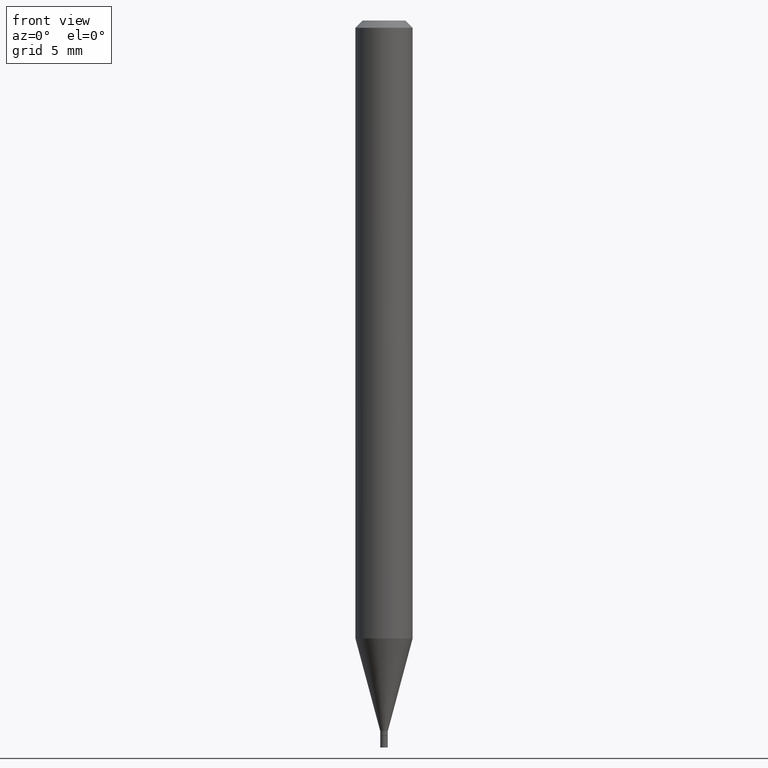
[diagram: clean part render]
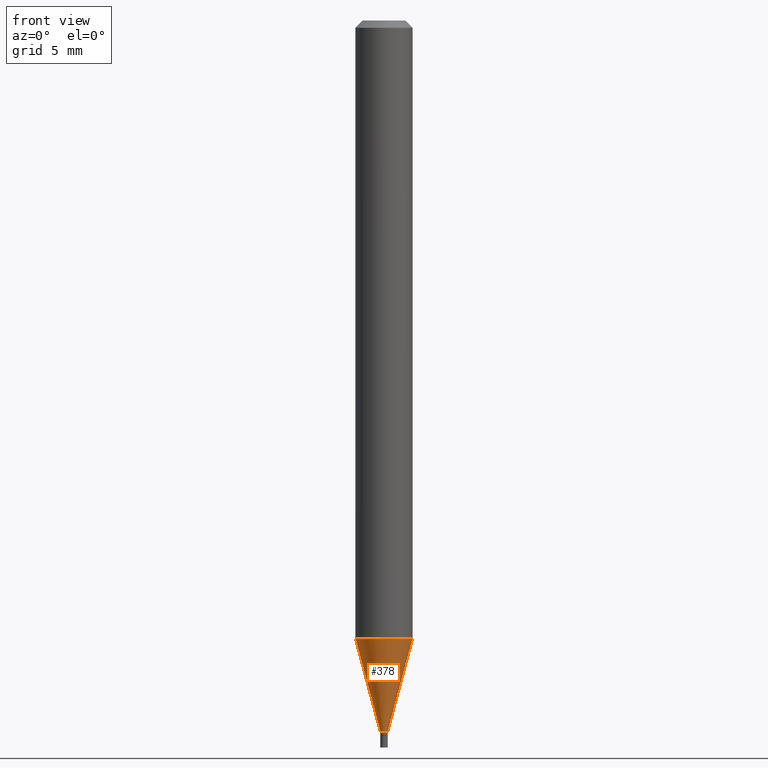
[diagram: same view with one face highlighted and labeled with its STEP entity id]
A machine part, front view. The second image highlights one B-rep face of the part: STEP entity #378.
In plain terms, the highlighted conical surface has half-angle 15 deg.
Its self-contained STEP definition (entity closure, byte-faithful):
#5 = DIRECTION ( 'NONE',  ( -2.445468806185136597E-29, 3.491481338843145583E-15, 1.000000000000000000 ) ) ;
#10 = CARTESIAN_POINT ( 'NONE',  ( 0.007849999999999919542, -5.173327899763888780E-15, -1.466000000000000192 ) ) ;
#39 = CARTESIAN_POINT ( 'NONE',  ( -0.007849999999999919542, -5.062734037986884746E-15, -1.466000000000000192 ) ) ;
#53 = DIRECTION ( 'NONE',  ( -0.2588190451025214611, 5.211531920934551042E-15, 0.9659258262890682012 ) ) ;
#78 = ORIENTED_EDGE ( 'NONE', *, *, #420, .F. ) ;
#92 = CARTESIAN_POINT ( 'NONE',  ( 0.05904999999999998445, -4.863699838449076344E-15, -1.274918998652473823 ) ) ;
#108 = VECTOR ( 'NONE', #53, 39.37007874015747433 ) ;
#117 = CARTESIAN_POINT ( 'NONE',  ( 0.007849999999999919542, -5.173327899763888780E-15, -1.466000000000000192 ) ) ;
#149 = AXIS2_PLACEMENT_3D ( 'NONE', #224, #407, #301 ) ;
#166 = DIRECTION ( 'NONE',  ( 1.000000000000000000, -6.982962677686274599E-15, 0.000000000000000000 ) ) ;
#179 = EDGE_CURVE ( 'NONE', #192, #308, #345, .T. ) ;
#183 = EDGE_CURVE ( 'NONE', #308, #390, #399, .T. ) ;
#192 = VERTEX_POINT ( 'NONE', #335 ) ;
#219 = FACE_OUTER_BOUND ( 'NONE', #238, .T. ) ;
#224 = CARTESIAN_POINT ( 'NONE',  ( 3.585057269867410650E-29, -5.118511642744051990E-15, -1.466000000000000192 ) ) ;
#238 = EDGE_LOOP ( 'NONE', ( #78, #435, #333, #306 ) ) ;
#255 = DIRECTION ( 'NONE',  ( -2.445468806185136597E-29, 3.491481338843145583E-15, 1.000000000000000000 ) ) ;
#273 = CONICAL_SURFACE ( 'NONE', #316, 0.007849999999999919542, 0.2617993877991501295 ) ;
#279 = VECTOR ( 'NONE', #396, 39.37007874015747433 ) ;
#291 = CARTESIAN_POINT ( 'NONE',  ( -0.05904999999999998445, -4.031780406865363509E-15, -1.274918998652473823 ) ) ;
#297 = CARTESIAN_POINT ( 'NONE',  ( 3.585057269867410650E-29, -5.118511642744051990E-15, -1.466000000000000192 ) ) ;
#301 = DIRECTION ( 'NONE',  ( 1.000000000000000000, -6.982962677686274599E-15, 0.000000000000000000 ) ) ;
#306 = ORIENTED_EDGE ( 'NONE', *, *, #352, .F. ) ;
#308 = VERTEX_POINT ( 'NONE', #10 ) ;
#316 = AXIS2_PLACEMENT_3D ( 'NONE', #297, #5, #166 ) ;
#333 = ORIENTED_EDGE ( 'NONE', *, *, #183, .T. ) ;
#335 = CARTESIAN_POINT ( 'NONE',  ( -0.007849999999999919542, -4.547257222426124522E-15, -1.466000000000000192 ) ) ;
#345 = CIRCLE ( 'NONE', #149, 0.007849999999999919542 ) ;
#352 = EDGE_CURVE ( 'NONE', #397, #390, #392, .T. ) ;
#361 = AXIS2_PLACEMENT_3D ( 'NONE', #401, #255, #404 ) ;
#370 = LINE ( 'NONE', #39, #108 ) ;
#378 = ADVANCED_FACE ( 'NONE', ( #219 ), #273, .T. ) ;
#390 = VERTEX_POINT ( 'NONE', #92 ) ;
#392 = CIRCLE ( 'NONE', #361, 0.05904999999999999832 ) ;
#396 = DIRECTION ( 'NONE',  ( 0.2588190451025214611, 1.565188264969621573E-15, 0.9659258262890682012 ) ) ;
#397 = VERTEX_POINT ( 'NONE', #291 ) ;
#399 = LINE ( 'NONE', #117, #279 ) ;
#401 = CARTESIAN_POINT ( 'NONE',  ( 3.117774641617414915E-29, -4.451355892331702213E-15, -1.274918998652473823 ) ) ;
#404 = DIRECTION ( 'NONE',  ( 1.000000000000000000, -6.982962677686273021E-15, 0.000000000000000000 ) ) ;
#407 = DIRECTION ( 'NONE',  ( -2.445468806185136597E-29, 3.491481338843145583E-15, 1.000000000000000000 ) ) ;
#420 = EDGE_CURVE ( 'NONE', #192, #397, #370, .T. ) ;
#435 = ORIENTED_EDGE ( 'NONE', *, *, #179, .T. ) ;